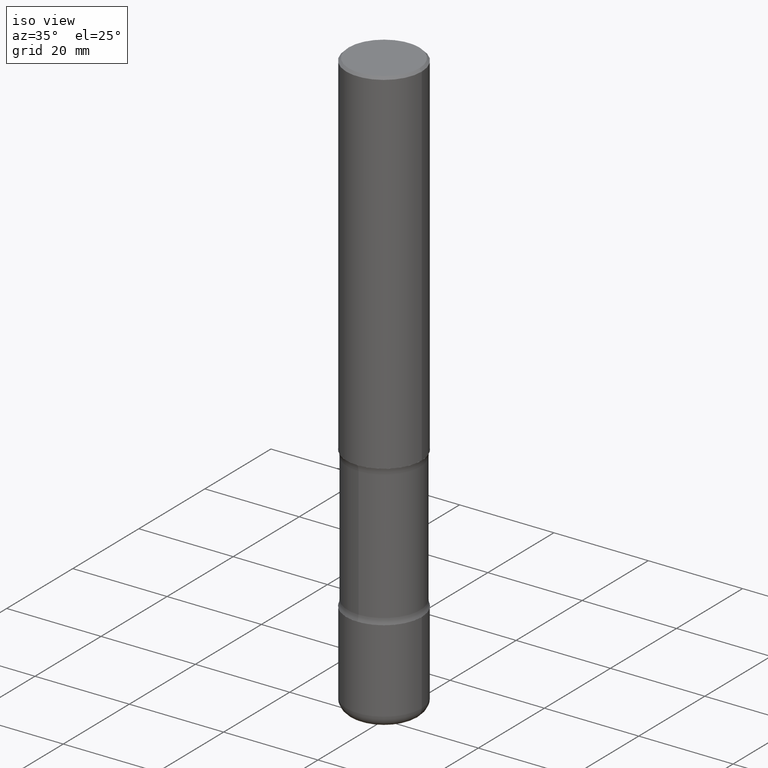
[diagram: clean part render]
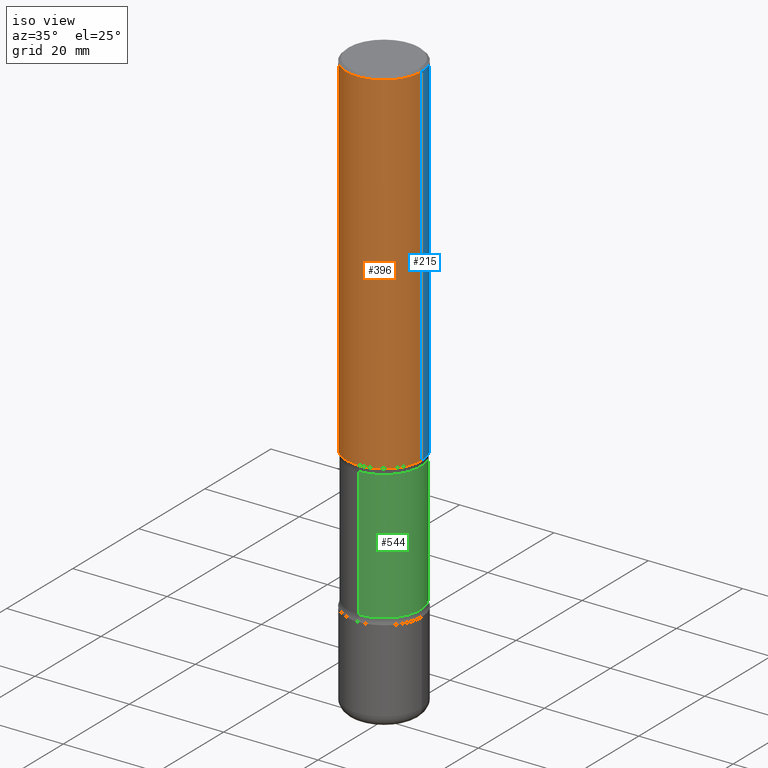
[diagram: same view with three faces highlighted in distinct colors, each labeled with its STEP entity id]
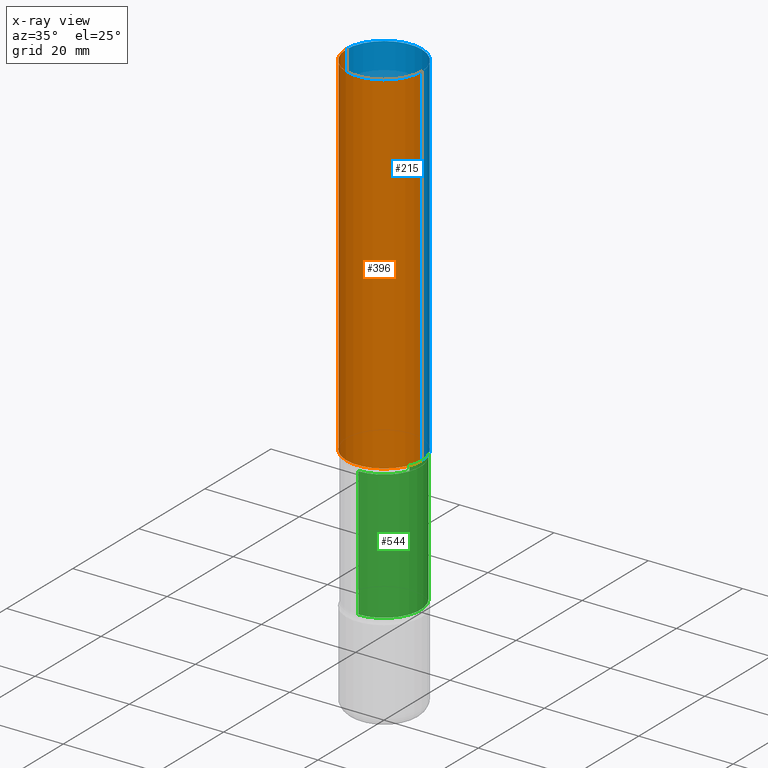
[diagram: x-ray of the same camera — body ghosted, the three highlighted faces saturated]
A machine part, iso view with three faces highlighted in distinct colors.
The next image is the same camera in x-ray (body ghosted, the three faces saturated) — at least one of them is partly hidden behind the body in this view.
Their STEP definitions:

[orange] entity #396 — the highlighted cylindrical surface (partial cylindrical patch) has radius 7.9997 mm, axis along (-0, 0, 1).
#1 = LINE ( 'NONE', #472, #282 ) ;
#43 = EDGE_CURVE ( 'NONE', #100, #530, #160, .T. ) ;
#76 = EDGE_CURVE ( 'NONE', #105, #403, #1, .T. ) ;
#100 = VERTEX_POINT ( 'NONE', #388 ) ;
#105 = VERTEX_POINT ( 'NONE', #467 ) ;
#122 = DIRECTION ( 'NONE',  ( 1.000000000000000000, -6.982962677686265922E-15, 0.000000000000000000 ) ) ;
#156 = FACE_OUTER_BOUND ( 'NONE', #372, .T. ) ;
#159 = DIRECTION ( 'NONE',  ( -2.445468806185136597E-29, 3.491481338843145583E-15, 1.000000000000000000 ) ) ;
#160 = LINE ( 'NONE', #252, #183 ) ;
#161 = CARTESIAN_POINT ( 'NONE',  ( 0.3149499999999998967, -2.230543471175006266E-15, -0.02000000000000006981 ) ) ;
#168 = AXIS2_PLACEMENT_3D ( 'NONE', #546, #159, #122 ) ;
#183 = VECTOR ( 'NONE', #555, 39.37007874015748143 ) ;
#184 = CIRCLE ( 'NONE', #245, 0.3149499999999998967 ) ;
#186 = ORIENTED_EDGE ( 'NONE', *, *, #76, .F. ) ;
#190 = AXIS2_PLACEMENT_3D ( 'NONE', #331, #463, #551 ) ;
#204 = DIRECTION ( 'NONE',  ( -2.445468806185136597E-29, 3.491481338843145583E-15, 1.000000000000000000 ) ) ;
#242 = CYLINDRICAL_SURFACE ( 'NONE', #190, 0.3149500000000000077 ) ;
#245 = AXIS2_PLACEMENT_3D ( 'NONE', #336, #204, #339 ) ;
#252 = CARTESIAN_POINT ( 'NONE',  ( 0.3149500000000000077, -2.199284095337289871E-15, 1.535751875536930130E-29 ) ) ;
#282 = VECTOR ( 'NONE', #512, 39.37007874015748143 ) ;
#331 = CARTESIAN_POINT ( 'NONE',  ( 0.000000000000000000, 0.000000000000000000, 0.000000000000000000 ) ) ;
#336 = CARTESIAN_POINT ( 'NONE',  ( 4.890937612370289799E-31, -6.982962677686315028E-17, -0.02000000000000006981 ) ) ;
#339 = DIRECTION ( 'NONE',  ( 1.000000000000000000, -6.982962677686265922E-15, 0.000000000000000000 ) ) ;
#353 = CIRCLE ( 'NONE', #168, 0.3149500000000001743 ) ;
#356 = ORIENTED_EDGE ( 'NONE', *, *, #43, .T. ) ;
#372 = EDGE_LOOP ( 'NONE', ( #186, #491, #356, #452 ) ) ;
#388 = CARTESIAN_POINT ( 'NONE',  ( 0.3149500000000001743, -1.250893019267332998E-14, -2.952799999999999869 ) ) ;
#391 = EDGE_CURVE ( 'NONE', #403, #530, #184, .T. ) ;
#396 = ADVANCED_FACE ( 'NONE', ( #156 ), #242, .T. ) ;
#403 = VERTEX_POINT ( 'NONE', #417 ) ;
#416 = EDGE_CURVE ( 'NONE', #105, #100, #353, .T. ) ;
#417 = CARTESIAN_POINT ( 'NONE',  ( -0.3149499999999998967, 2.129454468560425784E-15, -0.02000000000000006981 ) ) ;
#452 = ORIENTED_EDGE ( 'NONE', *, *, #391, .F. ) ;
#463 = DIRECTION ( 'NONE',  ( -2.445468806185136597E-29, 3.491481338843145583E-15, 1.000000000000000000 ) ) ;
#467 = CARTESIAN_POINT ( 'NONE',  ( -0.3149500000000001743, -2.951883515780012562E-15, -2.952799999999999869 ) ) ;
#472 = CARTESIAN_POINT ( 'NONE',  ( -0.3149500000000000077, 2.237854346276435590E-15, -1.549218606675782676E-29 ) ) ;
#491 = ORIENTED_EDGE ( 'NONE', *, *, #416, .T. ) ;
#512 = DIRECTION ( 'NONE',  ( -2.445468806185136877E-29, 3.491481338843145188E-15, 1.000000000000000000 ) ) ;
#530 = VERTEX_POINT ( 'NONE', #161 ) ;
#546 = CARTESIAN_POINT ( 'NONE',  ( 7.220980290903470182E-29, -1.030964609733603853E-14, -2.952799999999999869 ) ) ;
#551 = DIRECTION ( 'NONE',  ( 1.000000000000000000, -6.982962677686266711E-15, 4.876176775795936353E-29 ) ) ;
#555 = DIRECTION ( 'NONE',  ( -2.445468806185136877E-29, 3.491481338843145188E-15, 1.000000000000000000 ) ) ;

[blue] entity #215 — the highlighted cylindrical surface (partial cylindrical patch) has radius 7.9997 mm, axis along (-0, 0, 1).
#1 = LINE ( 'NONE', #472, #282 ) ;
#5 = ORIENTED_EDGE ( 'NONE', *, *, #43, .F. ) ;
#14 = DIRECTION ( 'NONE',  ( -2.445468806185136597E-29, 3.491481338843145583E-15, 1.000000000000000000 ) ) ;
#30 = CARTESIAN_POINT ( 'NONE',  ( 4.890937612370289799E-31, -6.982962677686315028E-17, -0.02000000000000006981 ) ) ;
#43 = EDGE_CURVE ( 'NONE', #100, #530, #160, .T. ) ;
#45 = AXIS2_PLACEMENT_3D ( 'NONE', #223, #14, #181 ) ;
#67 = AXIS2_PLACEMENT_3D ( 'NONE', #269, #219, #401 ) ;
#76 = EDGE_CURVE ( 'NONE', #105, #403, #1, .T. ) ;
#95 = FACE_OUTER_BOUND ( 'NONE', #362, .T. ) ;
#100 = VERTEX_POINT ( 'NONE', #388 ) ;
#105 = VERTEX_POINT ( 'NONE', #467 ) ;
#144 = ORIENTED_EDGE ( 'NONE', *, *, #76, .T. ) ;
#160 = LINE ( 'NONE', #252, #183 ) ;
#161 = CARTESIAN_POINT ( 'NONE',  ( 0.3149499999999998967, -2.230543471175006266E-15, -0.02000000000000006981 ) ) ;
#167 = EDGE_CURVE ( 'NONE', #100, #105, #315, .T. ) ;
#181 = DIRECTION ( 'NONE',  ( 1.000000000000000000, -6.982962677686266711E-15, 4.876176775795936353E-29 ) ) ;
#183 = VECTOR ( 'NONE', #555, 39.37007874015748143 ) ;
#200 = DIRECTION ( 'NONE',  ( -2.445468806185136597E-29, 3.491481338843145583E-15, 1.000000000000000000 ) ) ;
#215 = ADVANCED_FACE ( 'NONE', ( #95 ), #519, .T. ) ;
#219 = DIRECTION ( 'NONE',  ( -2.445468806185136597E-29, 3.491481338843145583E-15, 1.000000000000000000 ) ) ;
#223 = CARTESIAN_POINT ( 'NONE',  ( 0.000000000000000000, 0.000000000000000000, 0.000000000000000000 ) ) ;
#252 = CARTESIAN_POINT ( 'NONE',  ( 0.3149500000000000077, -2.199284095337289871E-15, 1.535751875536930130E-29 ) ) ;
#267 = CIRCLE ( 'NONE', #332, 0.3149499999999998967 ) ;
#269 = CARTESIAN_POINT ( 'NONE',  ( 7.220980290903470182E-29, -1.030964609733603853E-14, -2.952799999999999869 ) ) ;
#282 = VECTOR ( 'NONE', #512, 39.37007874015748143 ) ;
#315 = CIRCLE ( 'NONE', #67, 0.3149500000000001743 ) ;
#324 = DIRECTION ( 'NONE',  ( 1.000000000000000000, -6.982962677686265922E-15, 0.000000000000000000 ) ) ;
#329 = ORIENTED_EDGE ( 'NONE', *, *, #167, .T. ) ;
#332 = AXIS2_PLACEMENT_3D ( 'NONE', #30, #200, #324 ) ;
#352 = ORIENTED_EDGE ( 'NONE', *, *, #408, .F. ) ;
#362 = EDGE_LOOP ( 'NONE', ( #329, #144, #352, #5 ) ) ;
#388 = CARTESIAN_POINT ( 'NONE',  ( 0.3149500000000001743, -1.250893019267332998E-14, -2.952799999999999869 ) ) ;
#401 = DIRECTION ( 'NONE',  ( 1.000000000000000000, -6.982962677686265922E-15, 0.000000000000000000 ) ) ;
#403 = VERTEX_POINT ( 'NONE', #417 ) ;
#408 = EDGE_CURVE ( 'NONE', #530, #403, #267, .T. ) ;
#417 = CARTESIAN_POINT ( 'NONE',  ( -0.3149499999999998967, 2.129454468560425784E-15, -0.02000000000000006981 ) ) ;
#467 = CARTESIAN_POINT ( 'NONE',  ( -0.3149500000000001743, -2.951883515780012562E-15, -2.952799999999999869 ) ) ;
#472 = CARTESIAN_POINT ( 'NONE',  ( -0.3149500000000000077, 2.237854346276435590E-15, -1.549218606675782676E-29 ) ) ;
#512 = DIRECTION ( 'NONE',  ( -2.445468806185136877E-29, 3.491481338843145188E-15, 1.000000000000000000 ) ) ;
#519 = CYLINDRICAL_SURFACE ( 'NONE', #45, 0.3149500000000000077 ) ;
#530 = VERTEX_POINT ( 'NONE', #161 ) ;
#555 = DIRECTION ( 'NONE',  ( -2.445468806185136877E-29, 3.491481338843145188E-15, 1.000000000000000000 ) ) ;

[green] entity #544 — the highlighted cylindrical surface (partial cylindrical patch) has radius 7.7356 mm, axis along (0, -0, -1).
#19 = VERTEX_POINT ( 'NONE', #516 ) ;
#60 = VECTOR ( 'NONE', #412, 39.37007874015748143 ) ;
#62 = ORIENTED_EDGE ( 'NONE', *, *, #454, .T. ) ;
#84 = CARTESIAN_POINT ( 'NONE',  ( 9.981189619433368937E-29, -1.426782425931172754E-14, -4.083981666694489476 ) ) ;
#87 = EDGE_CURVE ( 'NONE', #534, #409, #136, .T. ) ;
#136 = CIRCLE ( 'NONE', #158, 0.3045499999999999874 ) ;
#149 = AXIS2_PLACEMENT_3D ( 'NONE', #164, #195, #424 ) ;
#154 = EDGE_LOOP ( 'NONE', ( #62, #235, #447, #406 ) ) ;
#155 = DIRECTION ( 'NONE',  ( 6.982962677686265922E-15, 1.000000000000000000, -3.588045304435085321E-15 ) ) ;
#158 = AXIS2_PLACEMENT_3D ( 'NONE', #84, #249, #418 ) ;
#162 = DIRECTION ( 'NONE',  ( 2.566870125073337216E-29, -3.317627740461282317E-15, -1.000000000000000000 ) ) ;
#164 = CARTESIAN_POINT ( 'NONE',  ( 7.205727071619985758E-29, -1.068059502971681171E-14, -3.002718333305510523 ) ) ;
#195 = DIRECTION ( 'NONE',  ( 2.566870125073337216E-29, -3.317627740461282317E-15, -1.000000000000000000 ) ) ;
#235 = ORIENTED_EDGE ( 'NONE', *, *, #302, .T. ) ;
#236 = VECTOR ( 'NONE', #162, 39.37007874015748143 ) ;
#238 = FACE_OUTER_BOUND ( 'NONE', #154, .T. ) ;
#241 = CARTESIAN_POINT ( 'NONE',  ( 2.126661283489425137E-15, 0.3045499999999894403, -3.002718333305511411 ) ) ;
#246 = AXIS2_PLACEMENT_3D ( 'NONE', #371, #501, #155 ) ;
#249 = DIRECTION ( 'NONE',  ( 2.566870125073337216E-29, -3.317627740461282317E-15, -1.000000000000000000 ) ) ;
#264 = LINE ( 'NONE', #400, #236 ) ;
#274 = CIRCLE ( 'NONE', #149, 0.3045500000000000984 ) ;
#280 = CYLINDRICAL_SURFACE ( 'NONE', #246, 0.3045500000000000429 ) ;
#302 = EDGE_CURVE ( 'NONE', #19, #409, #264, .T. ) ;
#319 = EDGE_CURVE ( 'NONE', #531, #534, #327, .T. ) ;
#327 = LINE ( 'NONE', #469, #60 ) ;
#371 = CARTESIAN_POINT ( 'NONE',  ( 1.213047703437148110E-28, -1.704573478948289233E-14, -4.921299999999999564 ) ) ;
#377 = CARTESIAN_POINT ( 'NONE',  ( -2.125039254809631347E-15, -0.3045500000000142538, -4.083981666694488588 ) ) ;
#400 = CARTESIAN_POINT ( 'NONE',  ( -2.089364665221198612E-15, -0.3045500000000170848, -4.921299999999998676 ) ) ;
#406 = ORIENTED_EDGE ( 'NONE', *, *, #319, .F. ) ;
#409 = VERTEX_POINT ( 'NONE', #377 ) ;
#412 = DIRECTION ( 'NONE',  ( 2.566870125073337216E-29, -3.317627740461282317E-15, -1.000000000000000000 ) ) ;
#418 = DIRECTION ( 'NONE',  ( 6.982962677686265922E-15, 1.000000000000000000, -3.588045304435085321E-15 ) ) ;
#424 = DIRECTION ( 'NONE',  ( 6.982962677686265922E-15, 1.000000000000000000, -3.588045304435084532E-15 ) ) ;
#447 = ORIENTED_EDGE ( 'NONE', *, *, #87, .F. ) ;
#454 = EDGE_CURVE ( 'NONE', #531, #19, #274, .T. ) ;
#469 = CARTESIAN_POINT ( 'NONE',  ( 2.126661283489474046E-15, 0.3045499999999830010, -4.921300000000000452 ) ) ;
#473 = CARTESIAN_POINT ( 'NONE',  ( 2.126661283489451958E-15, 0.3045499999999856655, -4.083981666694491253 ) ) ;
#501 = DIRECTION ( 'NONE',  ( 2.566870125073337216E-29, -3.317627740461282317E-15, -1.000000000000000000 ) ) ;
#516 = CARTESIAN_POINT ( 'NONE',  ( -2.125039254809661718E-15, -0.3045500000000108121, -3.002718333305509191 ) ) ;
#531 = VERTEX_POINT ( 'NONE', #241 ) ;
#534 = VERTEX_POINT ( 'NONE', #473 ) ;
#544 = ADVANCED_FACE ( 'NONE', ( #238 ), #280, .T. ) ;